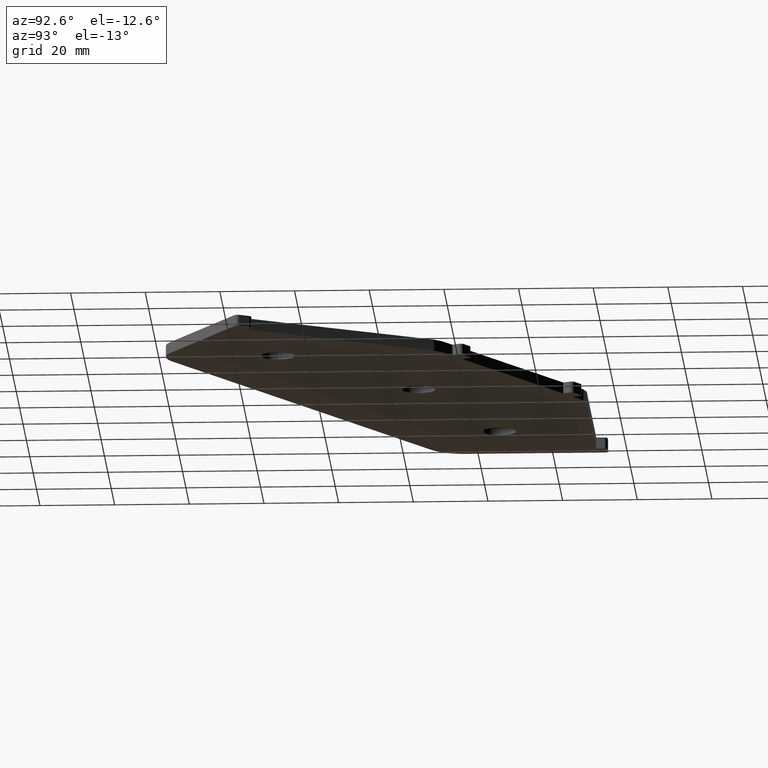
[diagram: clean part render]
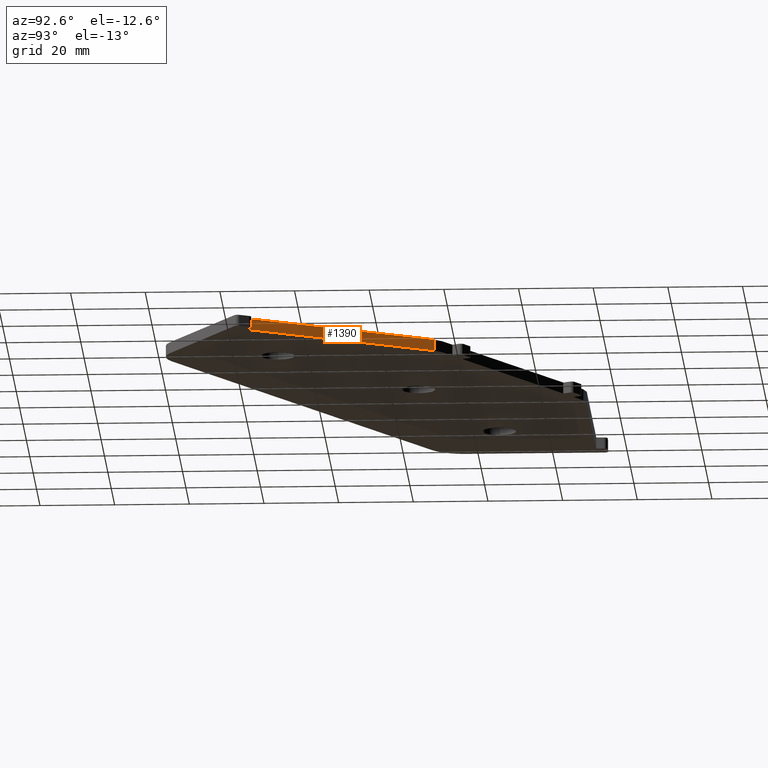
[diagram: same view with one face highlighted and labeled with its STEP entity id]
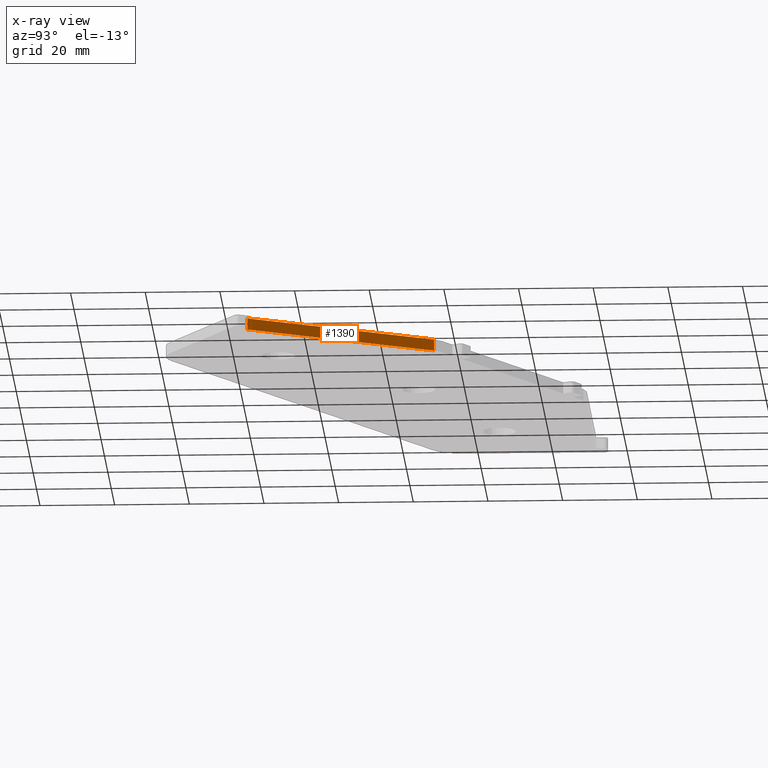
[diagram: x-ray of the same camera — body ghosted, the highlighted face saturated]
A machine part, auxiliary view. The second image highlights one B-rep face of the part: STEP entity #1390.
The next image is the same camera in x-ray: the body ghosted, the highlighted face saturated — about 0% of this face is hidden behind the body in this view.
In plain terms, the highlighted planar face has unit normal (0.866, 0.5, -0).
Its self-contained STEP definition (entity closure, byte-faithful):
#45 = VERTEX_POINT ( 'NONE', #567 ) ;
#147 = LINE ( 'NONE', #580, #166 ) ;
#166 = VECTOR ( 'NONE', #301, 1000.000000000000000 ) ;
#172 = DIRECTION ( 'NONE',  ( -0.5000000000000985878, 0.8660254037843816421, 0.000000000000000000 ) ) ;
#223 = ORIENTED_EDGE ( 'NONE', *, *, #720, .F. ) ;
#235 = CARTESIAN_POINT ( 'NONE',  ( 680.0980812601939078, 1004.646096448531125, 1257.499999999999545 ) ) ;
#266 = ORIENTED_EDGE ( 'NONE', *, *, #645, .T. ) ;
#272 = CARTESIAN_POINT ( 'NONE',  ( 682.5980812601943626, 1000.315969429609140, 1257.499999999999545 ) ) ;
#301 = DIRECTION ( 'NONE',  ( -0.000000000000000000, -0.000000000000000000, -1.000000000000000000 ) ) ;
#321 = CARTESIAN_POINT ( 'NONE',  ( 682.5980812601943626, 1000.315969429609140, 1257.499999999999545 ) ) ;
#426 = PLANE ( 'NONE',  #1005 ) ;
#502 = VECTOR ( 'NONE', #857, 1000.000000000000114 ) ;
#567 = CARTESIAN_POINT ( 'NONE',  ( 651.9726203776482407, 1053.360823683378158, 1260.499999999999545 ) ) ;
#580 = CARTESIAN_POINT ( 'NONE',  ( 680.0980812601939078, 1004.646096448531125, 1257.499999999999545 ) ) ;
#601 = EDGE_LOOP ( 'NONE', ( #756, #223, #1025, #266 ) ) ;
#645 = EDGE_CURVE ( 'NONE', #1436, #681, #693, .T. ) ;
#647 = DIRECTION ( 'NONE',  ( -0.000000000000000000, -0.000000000000000000, -1.000000000000000000 ) ) ;
#681 = VERTEX_POINT ( 'NONE', #1408 ) ;
#693 = LINE ( 'NONE', #272, #797 ) ;
#720 = EDGE_CURVE ( 'NONE', #1396, #45, #837, .T. ) ;
#756 = ORIENTED_EDGE ( 'NONE', *, *, #761, .F. ) ;
#761 = EDGE_CURVE ( 'NONE', #45, #681, #813, .T. ) ;
#797 = VECTOR ( 'NONE', #172, 1000.000000000000114 ) ;
#813 = LINE ( 'NONE', #1160, #1432 ) ;
#837 = LINE ( 'NONE', #1059, #502 ) ;
#857 = DIRECTION ( 'NONE',  ( -0.5000000000000985878, 0.8660254037843816421, 0.000000000000000000 ) ) ;
#874 = CARTESIAN_POINT ( 'NONE',  ( 680.0980812601939078, 1004.646096448531125, 1260.499999999999545 ) ) ;
#1005 = AXIS2_PLACEMENT_3D ( 'NONE', #321, #1075, #1442 ) ;
#1025 = ORIENTED_EDGE ( 'NONE', *, *, #1231, .T. ) ;
#1059 = CARTESIAN_POINT ( 'NONE',  ( 682.5980812601943626, 1000.315969429609140, 1260.499999999999545 ) ) ;
#1075 = DIRECTION ( 'NONE',  ( 0.8660254037843817532, 0.5000000000000986988, -0.000000000000000000 ) ) ;
#1160 = CARTESIAN_POINT ( 'NONE',  ( 651.9726203776482407, 1053.360823683378158, 1257.499999999999545 ) ) ;
#1231 = EDGE_CURVE ( 'NONE', #1396, #1436, #147, .T. ) ;
#1313 = FACE_OUTER_BOUND ( 'NONE', #601, .T. ) ;
#1390 = ADVANCED_FACE ( 'NONE', ( #1313 ), #426, .T. ) ;
#1396 = VERTEX_POINT ( 'NONE', #874 ) ;
#1408 = CARTESIAN_POINT ( 'NONE',  ( 651.9726203776482407, 1053.360823683378158, 1257.499999999999545 ) ) ;
#1432 = VECTOR ( 'NONE', #647, 1000.000000000000000 ) ;
#1436 = VERTEX_POINT ( 'NONE', #235 ) ;
#1442 = DIRECTION ( 'NONE',  ( -0.5000000000000985878, 0.8660254037843816421, 0.000000000000000000 ) ) ;